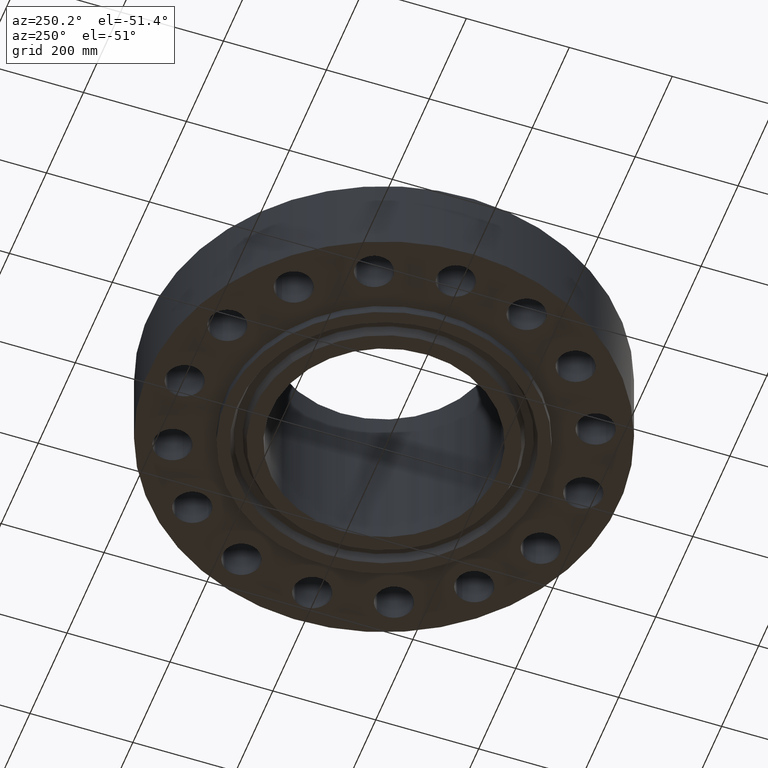
[diagram: clean part render]
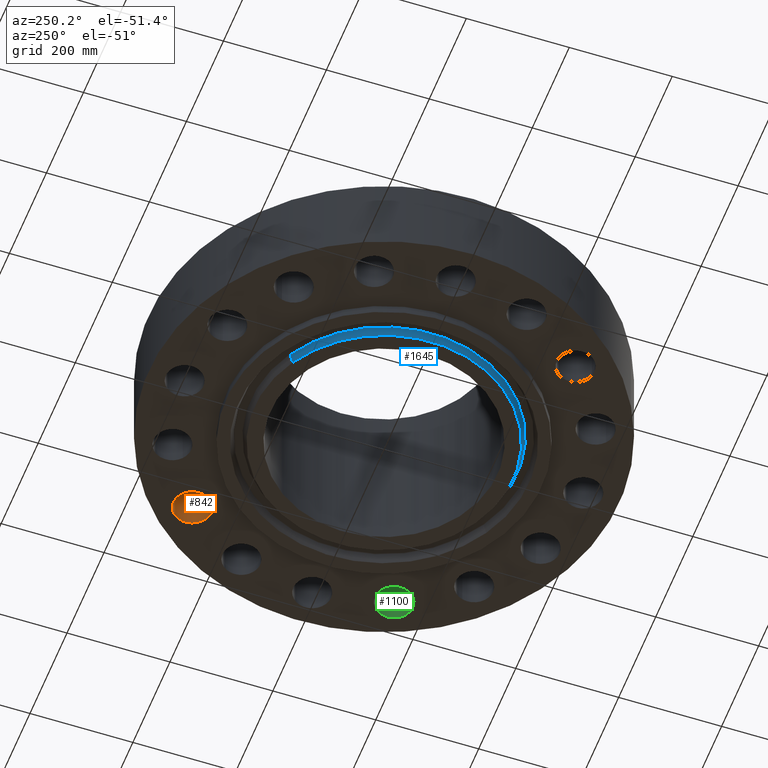
[diagram: same view with three faces highlighted in distinct colors, each labeled with its STEP entity id]
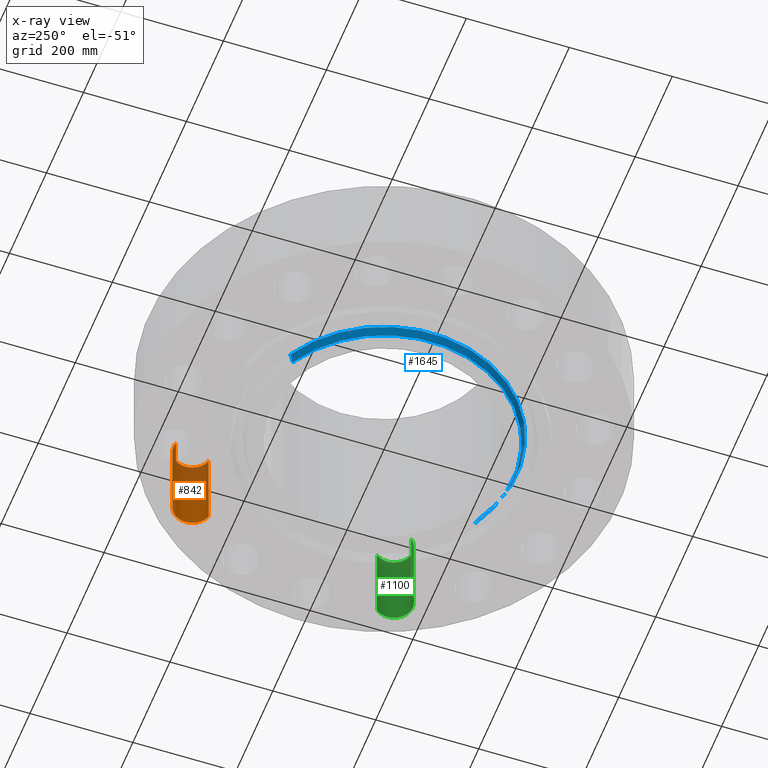
[diagram: x-ray of the same camera — body ghosted, the three highlighted faces saturated]
A machine part, auxiliary view with three faces highlighted in distinct colors.
The next image is the same camera in x-ray (body ghosted, the three faces saturated) — at least one of them is partly hidden behind the body in this view.
Their STEP definitions:

[orange] entity #842 — the highlighted cylindrical surface (edge-blend (fillet) strip) has radius 36.576 mm, axis along (0, -0, -1).
#518=AXIS2_PLACEMENT_3D('Circle Axis2P3D',#516,#517,$) ;
#815=AXIS2_PLACEMENT_3D('Cylinder Axis2P3D',#812,#813,#814) ;
#833=AXIS2_PLACEMENT_3D('Circle Axis2P3D',#831,#832,$) ;
#516=CARTESIAN_POINT('Axis2P3D Location',(10.7833784131,10.7833784131,0.)) ;
#520=CARTESIAN_POINT('Vertex',(10.3779614883,12.1651298803,0.)) ;
#522=CARTESIAN_POINT('Vertex',(11.188795338,9.40162694595,0.)) ;
#812=CARTESIAN_POINT('Axis2P3D Location',(10.7833784131,10.7833784131,6.37606299215)) ;
#817=CARTESIAN_POINT('Line Origine',(10.3779614883,12.1651298803,3.19000000001)) ;
#821=CARTESIAN_POINT('Vertex',(10.3779614883,12.1651298803,6.38000000003)) ;
#824=CARTESIAN_POINT('Line Origine',(11.188795338,9.40162694595,3.19000000001)) ;
#828=CARTESIAN_POINT('Vertex',(11.188795338,9.40162694595,6.38000000003)) ;
#831=CARTESIAN_POINT('Axis2P3D Location',(10.7833784131,10.7833784131,6.38000000003)) ;
#517=DIRECTION('Axis2P3D Direction',(0.,0.,-0.0393700787402)) ;
#813=DIRECTION('Axis2P3D Direction',(0.,-0.,-0.0393700787402)) ;
#814=DIRECTION('Axis2P3D XDirection',(0.0110842335096,-0.0377775444876,0.)) ;
#818=DIRECTION('Vector Direction',(0.,0.,-0.0393700787402)) ;
#825=DIRECTION('Vector Direction',(0.,0.,-0.0393700787402)) ;
#832=DIRECTION('Axis2P3D Direction',(0.,-0.,-0.0393700787402)) ;
#819=VECTOR('Line Direction',#818,0.0393700787402) ;
#826=VECTOR('Line Direction',#825,0.0393700787402) ;
#837=ORIENTED_EDGE('',*,*,#823,.F.) ;
#838=ORIENTED_EDGE('',*,*,#524,.T.) ;
#839=ORIENTED_EDGE('',*,*,#830,.T.) ;
#840=ORIENTED_EDGE('',*,*,#835,.F.) ;
#842=ADVANCED_FACE('PartBody',(#841),#816,.F.) ;
#519=CIRCLE('generated circle',#518,1.44000000001) ;
#834=CIRCLE('generated circle',#833,1.44000000001) ;
#816=CYLINDRICAL_SURFACE('generated cylinder',#815,1.44000000001) ;
#524=EDGE_CURVE('',#521,#523,#519,.T.) ;
#823=EDGE_CURVE('',#521,#822,#820,.F.) ;
#830=EDGE_CURVE('',#523,#829,#827,.F.) ;
#835=EDGE_CURVE('',#822,#829,#834,.T.) ;
#836=EDGE_LOOP('',(#837,#838,#839,#840)) ;
#841=FACE_OUTER_BOUND('',#836,.T.) ;
#820=LINE('Line',#817,#819) ;
#827=LINE('Line',#824,#826) ;
#521=VERTEX_POINT('',#520) ;
#523=VERTEX_POINT('',#522) ;
#822=VERTEX_POINT('',#821) ;
#829=VERTEX_POINT('',#828) ;

[blue] entity #1645 — the highlighted conical surface has half-angle 23 deg.
#1453=AXIS2_PLACEMENT_3D('Circle Axis2P3D',#1451,#1452,$) ;
#1607=AXIS2_PLACEMENT_3D('Circle Axis2P3D',#1605,#1606,$) ;
#1620=AXIS2_PLACEMENT_3D('Cone Axis2P3D',#1617,#1618,#1619) ;
#1446=CARTESIAN_POINT('Vertex',(-4.74918938543,8.69333285812,-0.688000000003)) ;
#1448=CARTESIAN_POINT('Vertex',(4.74918938543,-8.69333285812,-0.688000000003)) ;
#1451=CARTESIAN_POINT('Axis2P3D Location',(-1.1189649382E-015,0.,-0.688000000003)) ;
#1583=CARTESIAN_POINT('Vertex',(4.87754524661,-8.92828668601,-0.0572712739222)) ;
#1590=CARTESIAN_POINT('Vertex',(-4.87754524661,8.92828668601,-0.0572712739222)) ;
#1605=CARTESIAN_POINT('Axis2P3D Location',(0.,0.,-0.0572712739222)) ;
#1617=CARTESIAN_POINT('Axis2P3D Location',(0.,0.,-0.748000000003)) ;
#1622=CARTESIAN_POINT('Line Origine',(-4.81336731602,8.81080977207,-0.372635636962)) ;
#1627=CARTESIAN_POINT('Line Origine',(4.81336731602,-8.81080977207,-0.372635636962)) ;
#1452=DIRECTION('Axis2P3D Direction',(0.,0.,-0.0393700787402)) ;
#1606=DIRECTION('Axis2P3D Direction',(0.,0.,0.0393700787402)) ;
#1618=DIRECTION('Axis2P3D Direction',(0.,0.,0.0393700787402)) ;
#1619=DIRECTION('Axis2P3D XDirection',(-0.0188750212049,0.0345504945626,0.)) ;
#1623=DIRECTION('Vector Direction',(-0.00737505833565,0.0134999537303,0.0362403485611)) ;
#1628=DIRECTION('Vector Direction',(0.00737505833565,-0.0134999537303,0.0362403485611)) ;
#1624=VECTOR('Line Direction',#1623,0.0393700787402) ;
#1629=VECTOR('Line Direction',#1628,0.0393700787402) ;
#1640=ORIENTED_EDGE('',*,*,#1631,.F.) ;
#1641=ORIENTED_EDGE('',*,*,#1609,.F.) ;
#1642=ORIENTED_EDGE('',*,*,#1626,.T.) ;
#1643=ORIENTED_EDGE('',*,*,#1455,.F.) ;
#1645=ADVANCED_FACE('PartBody',(#1644),#1621,.T.) ;
#1454=CIRCLE('generated circle',#1453,9.90600000004) ;
#1608=CIRCLE('generated circle',#1607,10.1737284601) ;
#1621=CONICAL_SURFACE('Cone',#1620,9.88053151107,0.401425727959) ;
#1455=EDGE_CURVE('',#1449,#1447,#1454,.T.) ;
#1609=EDGE_CURVE('',#1591,#1584,#1608,.T.) ;
#1626=EDGE_CURVE('',#1591,#1447,#1625,.F.) ;
#1631=EDGE_CURVE('',#1584,#1449,#1630,.F.) ;
#1639=EDGE_LOOP('',(#1640,#1641,#1642,#1643)) ;
#1644=FACE_OUTER_BOUND('',#1639,.T.) ;
#1625=LINE('Line',#1622,#1624) ;
#1630=LINE('Line',#1627,#1629) ;
#1447=VERTEX_POINT('',#1446) ;
#1449=VERTEX_POINT('',#1448) ;
#1584=VERTEX_POINT('',#1583) ;
#1591=VERTEX_POINT('',#1590) ;

[green] entity #1100 — the highlighted cylindrical surface (edge-blend (fillet) strip) has radius 36.576 mm, axis along (-0, 0, -1).
#572=AXIS2_PLACEMENT_3D('Circle Axis2P3D',#570,#571,$) ;
#1073=AXIS2_PLACEMENT_3D('Cylinder Axis2P3D',#1070,#1071,#1072) ;
#1091=AXIS2_PLACEMENT_3D('Circle Axis2P3D',#1089,#1090,$) ;
#570=CARTESIAN_POINT('Axis2P3D Location',(14.0891628709,-5.83592234359,0.)) ;
#574=CARTESIAN_POINT('Vertex',(15.2105884301,-4.93259255045,0.)) ;
#576=CARTESIAN_POINT('Vertex',(12.9677373116,-6.73925213673,0.)) ;
#1070=CARTESIAN_POINT('Axis2P3D Location',(14.0891628709,-5.83592234359,6.37606299215)) ;
#1075=CARTESIAN_POINT('Line Origine',(15.2105884301,-4.93259255045,3.19000000001)) ;
#1079=CARTESIAN_POINT('Vertex',(15.2105884301,-4.93259255045,6.38000000003)) ;
#1082=CARTESIAN_POINT('Line Origine',(12.9677373116,-6.73925213673,3.19000000001)) ;
#1086=CARTESIAN_POINT('Vertex',(12.9677373116,-6.73925213673,6.38000000003)) ;
#1089=CARTESIAN_POINT('Axis2P3D Location',(14.0891628709,-5.83592234359,6.38000000003)) ;
#571=DIRECTION('Axis2P3D Direction',(0.,0.,-0.0393700787402)) ;
#1071=DIRECTION('Axis2P3D Direction',(-0.,0.,-0.0393700787402)) ;
#1072=DIRECTION('Axis2P3D XDirection',(-0.030660147616,-0.0246973368639,0.)) ;
#1076=DIRECTION('Vector Direction',(0.,0.,-0.0393700787402)) ;
#1083=DIRECTION('Vector Direction',(0.,0.,-0.0393700787402)) ;
#1090=DIRECTION('Axis2P3D Direction',(-0.,0.,-0.0393700787402)) ;
#1077=VECTOR('Line Direction',#1076,0.0393700787402) ;
#1084=VECTOR('Line Direction',#1083,0.0393700787402) ;
#1095=ORIENTED_EDGE('',*,*,#1081,.F.) ;
#1096=ORIENTED_EDGE('',*,*,#578,.T.) ;
#1097=ORIENTED_EDGE('',*,*,#1088,.T.) ;
#1098=ORIENTED_EDGE('',*,*,#1093,.F.) ;
#1100=ADVANCED_FACE('PartBody',(#1099),#1074,.F.) ;
#573=CIRCLE('generated circle',#572,1.44000000001) ;
#1092=CIRCLE('generated circle',#1091,1.44000000001) ;
#1074=CYLINDRICAL_SURFACE('generated cylinder',#1073,1.44000000001) ;
#578=EDGE_CURVE('',#575,#577,#573,.T.) ;
#1081=EDGE_CURVE('',#575,#1080,#1078,.F.) ;
#1088=EDGE_CURVE('',#577,#1087,#1085,.F.) ;
#1093=EDGE_CURVE('',#1080,#1087,#1092,.T.) ;
#1094=EDGE_LOOP('',(#1095,#1096,#1097,#1098)) ;
#1099=FACE_OUTER_BOUND('',#1094,.T.) ;
#1078=LINE('Line',#1075,#1077) ;
#1085=LINE('Line',#1082,#1084) ;
#575=VERTEX_POINT('',#574) ;
#577=VERTEX_POINT('',#576) ;
#1080=VERTEX_POINT('',#1079) ;
#1087=VERTEX_POINT('',#1086) ;